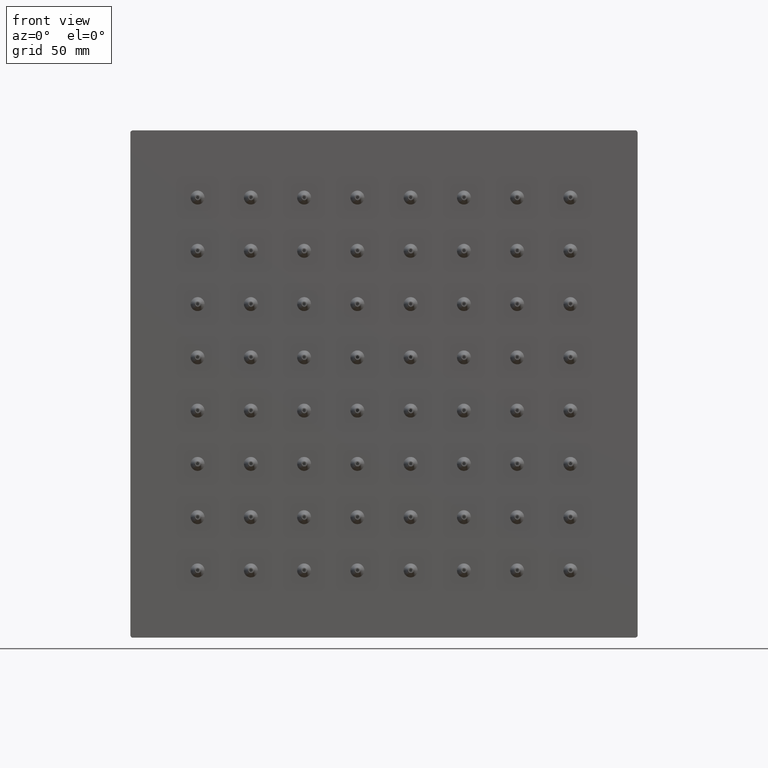
[diagram: clean part render]
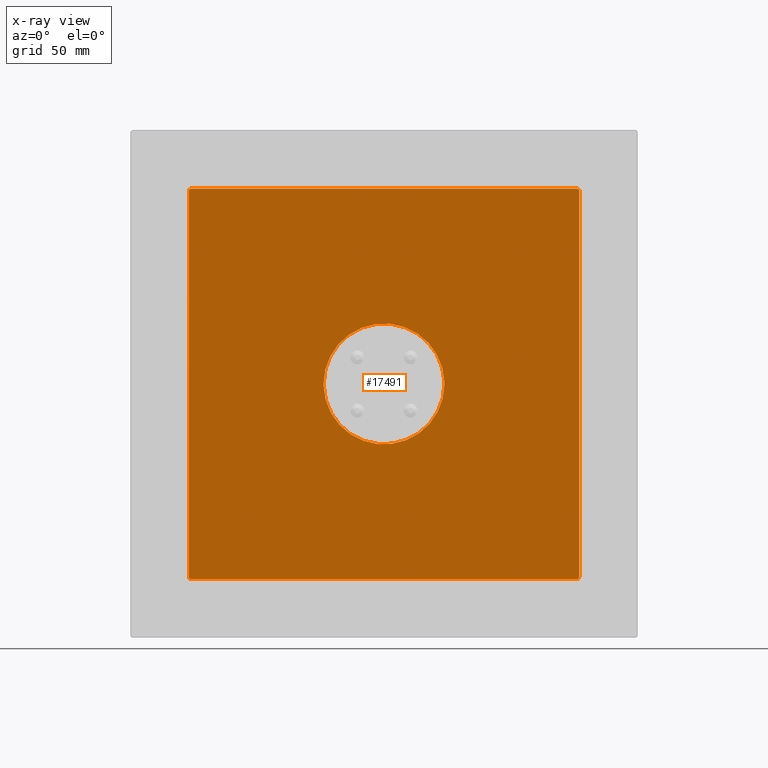
[diagram: x-ray — body ghosted, one internal face saturated and labeled with its STEP entity id]
A machine part, front view, then the same camera in x-ray: the body is ghosted and one INTERNAL B-rep face — a face not visible from any outside direction — is saturated and labeled: STEP entity #17491.
In plain terms, the highlighted planar face has unit normal (0, -1, 0).
Its self-contained STEP definition (entity closure, byte-faithful):
#14764=DIRECTION('',(-1.E0,-4.984975667720E-14,0.E0));
#14765=VECTOR('',#14764,1.514899473312E2);
#14766=CARTESIAN_POINT('',(7.574497375147E1,3.E0,7.7E1));
#14767=LINE('',#14766,#14765);
#14817=DIRECTION('',(7.372311434489E-13,0.E0,1.E0));
#14818=VECTOR('',#14817,1.514899474869E2);
#14819=CARTESIAN_POINT('',(7.699999999978E1,3.E0,-7.574497371398E1));
#14820=LINE('',#14819,#14818);
#14862=DIRECTION('',(1.E0,0.E0,-7.244733583093E-13));
#14863=VECTOR('',#14862,1.514899474311E2);
#14864=CARTESIAN_POINT('',(-7.574497371398E1,3.E0,-7.699999999978E1));
#14865=LINE('',#14864,#14863);
#14907=DIRECTION('',(0.E0,0.E0,-1.E0));
#14908=VECTOR('',#14907,1.514899474160E2);
#14909=CARTESIAN_POINT('',(-7.7E1,3.E0,7.574497369970E1));
#14910=LINE('',#14909,#14908);
#14937=CARTESIAN_POINT('',(7.574497375147E1,3.E0,7.7E1));
#14938=CARTESIAN_POINT('',(7.574838606245E1,3.E0,7.699999992221E1));
#14939=CARTESIAN_POINT('',(7.581675093223E1,3.000000000002E0,7.699984770457E1));
#14940=CARTESIAN_POINT('',(7.594239839468E1,3.E0,7.699387106602E1));
#14941=CARTESIAN_POINT('',(7.611340851478E1,3.E0,7.696851605332E1));
#14942=CARTESIAN_POINT('',(7.626363513042E1,3.E0,7.692932943678E1));
#14943=CARTESIAN_POINT('',(7.639694123551E1,3.E0,7.687739334617E1));
#14944=CARTESIAN_POINT('',(7.651656800654E1,3.E0,7.681252461579E1));
#14945=CARTESIAN_POINT('',(7.662454789942E1,3.E0,7.673354829699E1));
#14946=CARTESIAN_POINT('',(7.672155441202E1,3.E0,7.663873654961E1));
#14947=CARTESIAN_POINT('',(7.680703977587E1,3.E0,7.652617559770E1));
#14948=CARTESIAN_POINT('',(7.687946101982E1,3.E0,7.639432131737E1));
#14949=CARTESIAN_POINT('',(7.693676045309E1,3.E0,7.624258728226E1));
#14950=CARTESIAN_POINT('',(7.697702977412E1,3.E0,7.607147106796E1));
#14951=CARTESIAN_POINT('',(7.699655785517E1,3.000000000001E0,7.590322748133E1));
#14952=CARTESIAN_POINT('',(7.700000125687E1,3.E0,7.579222712678E1));
#14953=CARTESIAN_POINT('',(7.699999999989E1,3.E0,7.574497377291E1));
#14958=CARTESIAN_POINT('',(7.699999999978E1,3.E0,-7.574497371398E1));
#14959=CARTESIAN_POINT('',(7.700000033201E1,3.E0,-7.581107805288E1));
#14960=CARTESIAN_POINT('',(7.699438434364E1,3.E0,-7.594064857103E1));
#14961=CARTESIAN_POINT('',(7.696674572087E1,3.E0,-7.612587424425E1));
#14962=CARTESIAN_POINT('',(7.691985943023E1,3.E0,-7.629482208809E1));
#14963=CARTESIAN_POINT('',(7.685513589210E1,3.E0,-7.644447100477E1));
#14964=CARTESIAN_POINT('',(7.677360445775E1,3.E0,-7.657514378402E1));
#14965=CARTESIAN_POINT('',(7.667577296184E1,3.E0,-7.668783422723E1));
#14966=CARTESIAN_POINT('',(7.656119073355E1,3.E0,-7.678369449514E1));
#14967=CARTESIAN_POINT('',(7.642859910613E1,3.E0,-7.686326152549E1));
#14968=CARTESIAN_POINT('',(7.627664162514E1,3.E0,-7.692611194214E1));
#14969=CARTESIAN_POINT('',(7.610456703344E1,3.E0,-7.697113244146E1));
#14970=CARTESIAN_POINT('',(7.592505988187E1,3.E0,-7.699536944065E1));
#14971=CARTESIAN_POINT('',(7.580262640790E1,3.E0,-7.700000175289E1));
#14972=CARTESIAN_POINT('',(7.574497371710E1,3.E0,-7.699999999989E1));
#14977=CARTESIAN_POINT('',(-7.574497371398E1,3.E0,-7.699999999978E1));
#14978=CARTESIAN_POINT('',(-7.581107805288E1,3.E0,-7.700000033201E1));
#14979=CARTESIAN_POINT('',(-7.594064857103E1,3.E0,-7.699438434364E1));
#14980=CARTESIAN_POINT('',(-7.612587424425E1,3.E0,-7.696674572087E1));
#14981=CARTESIAN_POINT('',(-7.629482208809E1,3.E0,-7.691985943023E1));
#14982=CARTESIAN_POINT('',(-7.644447100477E1,3.E0,-7.685513589210E1));
#14983=CARTESIAN_POINT('',(-7.657514378402E1,3.E0,-7.677360445775E1));
#14984=CARTESIAN_POINT('',(-7.668783422723E1,3.E0,-7.667577296184E1));
#14985=CARTESIAN_POINT('',(-7.678369449514E1,3.E0,-7.656119073355E1));
#14986=CARTESIAN_POINT('',(-7.686326152549E1,3.E0,-7.642859910613E1));
#14987=CARTESIAN_POINT('',(-7.692611194213E1,3.E0,-7.627664162516E1));
#14988=CARTESIAN_POINT('',(-7.697113244147E1,3.E0,-7.610456703332E1));
#14989=CARTESIAN_POINT('',(-7.699536944059E1,3.E0,-7.592505988231E1));
#14990=CARTESIAN_POINT('',(-7.700000175300E1,3.E0,-7.580262640707E1));
#14991=CARTESIAN_POINT('',(-7.7E1,3.E0,-7.574497371627E1));
#14996=CARTESIAN_POINT('',(-7.7E1,3.E0,7.574497369970E1));
#14997=CARTESIAN_POINT('',(-7.700000084677E1,3.E0,7.580485273630E1));
#14998=CARTESIAN_POINT('',(-7.699534601167E1,3.E0,7.592336295083E1));
#14999=CARTESIAN_POINT('',(-7.697272875455E1,3.E0,7.609213370172E1));
#15000=CARTESIAN_POINT('',(-7.693490741006E1,3.E0,7.624614715869E1));
#15001=CARTESIAN_POINT('',(-7.688370606906E1,3.E0,7.638331342651E1));
#15002=CARTESIAN_POINT('',(-7.681783558214E1,3.E0,7.650861916146E1));
#15003=CARTESIAN_POINT('',(-7.673273729108E1,3.E0,7.662673218987E1));
#15004=CARTESIAN_POINT('',(-7.662128359133E1,3.E0,7.673857827293E1));
#15005=CARTESIAN_POINT('',(-7.647753482787E1,3.E0,7.683898784243E1));
#15006=CARTESIAN_POINT('',(-7.629971588471E1,3.E0,7.692018131083E1));
#15007=CARTESIAN_POINT('',(-7.608884443959E1,2.999999999997E0,
7.697611214581E1));
#15008=CARTESIAN_POINT('',(-7.589945291265E1,3.000000000008E0,
7.699717795751E1));
#15009=CARTESIAN_POINT('',(-7.578139289229E1,2.999999999993E0,
7.699999896704E1));
#15010=CARTESIAN_POINT('',(-7.574497357970E1,2.999999999993E0,7.7E1));
#15015=CARTESIAN_POINT('',(0.E0,3.E0,0.E0));
#15016=DIRECTION('',(0.E0,-1.E0,0.E0));
#15017=DIRECTION('',(-1.E0,0.E0,0.E0));
#15018=AXIS2_PLACEMENT_3D('',#15015,#15016,#15017);
#15023=CARTESIAN_POINT('',(0.E0,3.E0,0.E0));
#15024=DIRECTION('',(0.E0,-1.E0,0.E0));
#15025=DIRECTION('',(-9.995565227963E-1,0.E0,-2.977847772218E-2));
#15026=AXIS2_PLACEMENT_3D('',#15023,#15024,#15025);
#15031=CARTESIAN_POINT('',(0.E0,3.E0,0.E0));
#15032=DIRECTION('',(0.E0,-1.E0,0.E0));
#15033=DIRECTION('',(1.E0,0.E0,0.E0));
#15034=AXIS2_PLACEMENT_3D('',#15031,#15032,#15033);
#15039=CARTESIAN_POINT('',(0.E0,3.E0,0.E0));
#15040=DIRECTION('',(0.E0,-1.E0,0.E0));
#15041=DIRECTION('',(9.995565227963E-1,0.E0,2.977847772218E-2));
#15042=AXIS2_PLACEMENT_3D('',#15039,#15040,#15041);
#15592=CARTESIAN_POINT('',(7.574497371733E1,3.E0,7.7E1));
#15593=VERTEX_POINT('',#15592);
#15594=CARTESIAN_POINT('',(-7.574497357970E1,2.999999999993E0,7.7E1));
#15595=VERTEX_POINT('',#15594);
#15596=CARTESIAN_POINT('',(7.699999999984E1,3.E0,7.574497371025E1));
#15597=VERTEX_POINT('',#15596);
#15598=CARTESIAN_POINT('',(7.699999999984E1,3.E0,-7.574497373026E1));
#15599=VERTEX_POINT('',#15598);
#15600=CARTESIAN_POINT('',(7.574497372935E1,3.E0,-7.699999999984E1));
#15601=VERTEX_POINT('',#15600);
#15602=CARTESIAN_POINT('',(-7.574497373026E1,3.E0,-7.699999999984E1));
#15603=VERTEX_POINT('',#15602);
#15604=CARTESIAN_POINT('',(-7.7E1,3.E0,-7.574497372935E1));
#15605=VERTEX_POINT('',#15604);
#15606=CARTESIAN_POINT('',(-7.7E1,3.E0,7.574497373504E1));
#15607=VERTEX_POINT('',#15606);
#15608=CARTESIAN_POINT('',(-2.381725508942E1,3.E0,-7.095562721151E-1));
#15609=CARTESIAN_POINT('',(2.382782218537E1,3.E0,0.E0));
#15610=VERTEX_POINT('',#15608);
#15611=VERTEX_POINT('',#15609);
#15612=CARTESIAN_POINT('',(-2.382782218537E1,3.E0,0.E0));
#15613=VERTEX_POINT('',#15612);
#15614=CARTESIAN_POINT('',(2.381725508942E1,3.E0,7.095562721151E-1));
#15615=VERTEX_POINT('',#15614);
#17466=CARTESIAN_POINT('',(-1.E2,3.E0,7.7E1));
#17467=DIRECTION('',(0.E0,-1.E0,0.E0));
#17468=DIRECTION('',(0.E0,0.E0,-1.E0));
#17469=AXIS2_PLACEMENT_3D('',#17466,#17467,#17468);
#17470=PLANE('',#17469);
#17471=ORIENTED_EDGE('',*,*,#17110,.F.);
#17472=ORIENTED_EDGE('',*,*,#17189,.T.);
#17473=ORIENTED_EDGE('',*,*,#17203,.F.);
#17474=ORIENTED_EDGE('',*,*,#17281,.T.);
#17475=ORIENTED_EDGE('',*,*,#17295,.F.);
#17476=ORIENTED_EDGE('',*,*,#17373,.T.);
#17477=ORIENTED_EDGE('',*,*,#17387,.F.);
#17478=ORIENTED_EDGE('',*,*,#17460,.T.);
#17479=EDGE_LOOP('',(#17471,#17472,#17473,#17474,#17475,#17476,#17477,#17478));
#17480=FACE_OUTER_BOUND('',#17479,.F.);
#17482=ORIENTED_EDGE('',*,*,#17481,.T.);
#17484=ORIENTED_EDGE('',*,*,#17483,.T.);
#17486=ORIENTED_EDGE('',*,*,#17485,.T.);
#17488=ORIENTED_EDGE('',*,*,#17487,.T.);
#17489=EDGE_LOOP('',(#17482,#17484,#17486,#17488));
#17490=FACE_BOUND('',#17489,.F.);
#17491=ADVANCED_FACE('',(#17480,#17490),#17470,.T.);
#14954=B_SPLINE_CURVE_WITH_KNOTS('',3,(#14937,#14938,#14939,#14940,#14941,
#14942,#14943,#14944,#14945,#14946,#14947,#14948,#14949,#14950,#14951,#14952,
#14953),.UNSPECIFIED.,.F.,.F.,(4,1,1,1,1,1,1,1,1,1,1,1,1,1,4),(0.E0,
4.912846459065E-3,9.844844993338E-2,1.817732662282E-1,2.571515898899E-1,
3.271518961613E-1,3.944051412142E-1,4.609120256511E-1,5.284930042760E-1,
5.989520186240E-1,6.736602515209E-1,7.536715389055E-1,8.396868825458E-1,
9.319712518249E-1,1.E0),.UNSPECIFIED.);
#14973=B_SPLINE_CURVE_WITH_KNOTS('',3,(#14958,#14959,#14960,#14961,#14962,
#14963,#14964,#14965,#14966,#14967,#14968,#14969,#14970,#14971,#14972),
.UNSPECIFIED.,.F.,.F.,(4,1,1,1,1,1,1,1,1,1,1,1,4),(0.E0,9.517646198679E-2,
1.873448138216E-1,2.731917945981E-1,3.536529662022E-1,4.300875259901E-1,
5.042752561236E-1,5.784827643512E-1,6.551040894617E-1,7.361139757730E-1,
8.230539689182E-1,9.169957069134E-1,1.E0),.UNSPECIFIED.);
#14992=B_SPLINE_CURVE_WITH_KNOTS('',3,(#14977,#14978,#14979,#14980,#14981,
#14982,#14983,#14984,#14985,#14986,#14987,#14988,#14989,#14990,#14991),
.UNSPECIFIED.,.F.,.F.,(4,1,1,1,1,1,1,1,1,1,1,1,4),(0.E0,9.517646198673E-2,
1.873448138215E-1,2.731917945979E-1,3.536529662018E-1,4.300875259898E-1,
5.042752561233E-1,5.784827643507E-1,6.551040894611E-1,7.361139757725E-1,
8.230539689175E-1,9.169957069128E-1,1.E0),.UNSPECIFIED.);
#15011=B_SPLINE_CURVE_WITH_KNOTS('',3,(#14996,#14997,#14998,#14999,#15000,
#15001,#15002,#15003,#15004,#15005,#15006,#15007,#15008,#15009,#15010),
.UNSPECIFIED.,.F.,.F.,(4,1,1,1,1,1,1,1,1,1,1,1,4),(0.E0,8.622089643381E-2,
1.713136659670E-1,2.481595641573E-1,3.195925761106E-1,3.887290146441E-1,
4.600054621385E-1,5.386049845554E-1,6.266336933467E-1,7.232572263443E-1,
8.295989748851E-1,9.475659005668E-1,1.E0),.UNSPECIFIED.);
#15019=CIRCLE('',#15018,2.382782218537E1);
#15027=CIRCLE('',#15026,2.382782218537E1);
#15035=CIRCLE('',#15034,2.382782218537E1);
#15043=CIRCLE('',#15042,2.382782218537E1);
#17110=EDGE_CURVE('',#15593,#15595,#14767,.T.);
#17189=EDGE_CURVE('',#15593,#15597,#14954,.T.);
#17203=EDGE_CURVE('',#15599,#15597,#14820,.T.);
#17281=EDGE_CURVE('',#15599,#15601,#14973,.T.);
#17295=EDGE_CURVE('',#15603,#15601,#14865,.T.);
#17373=EDGE_CURVE('',#15603,#15605,#14992,.T.);
#17387=EDGE_CURVE('',#15607,#15605,#14910,.T.);
#17460=EDGE_CURVE('',#15607,#15595,#15011,.T.);
#17481=EDGE_CURVE('',#15613,#15610,#15019,.T.);
#17483=EDGE_CURVE('',#15610,#15611,#15027,.T.);
#17485=EDGE_CURVE('',#15611,#15615,#15035,.T.);
#17487=EDGE_CURVE('',#15615,#15613,#15043,.T.);